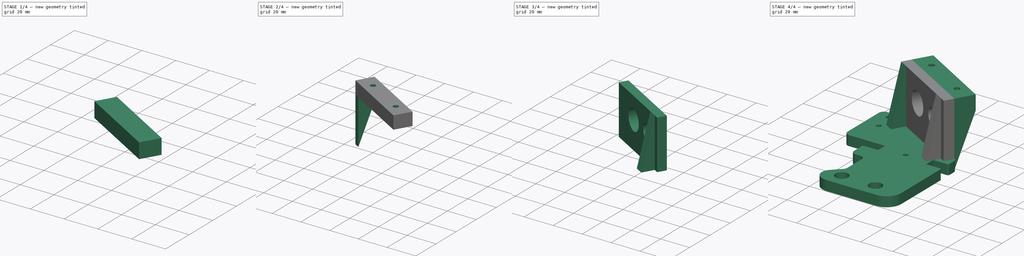
[diagram: build sequence overview — one tinted view per stage of 4, left to right]
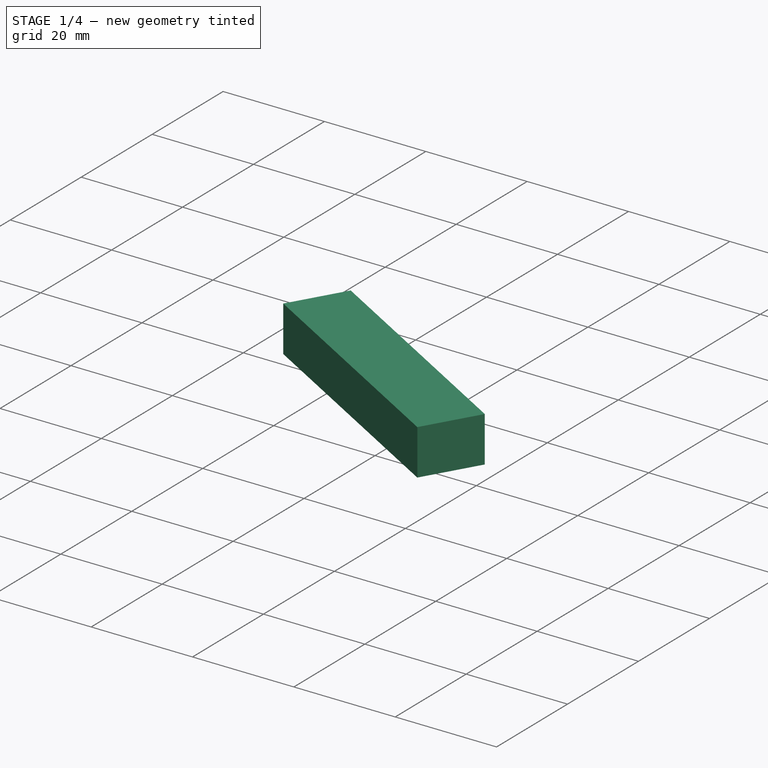
[diagram: stage 1 of 4 — iso view after this stage's code; geometry added in this stage tinted green]
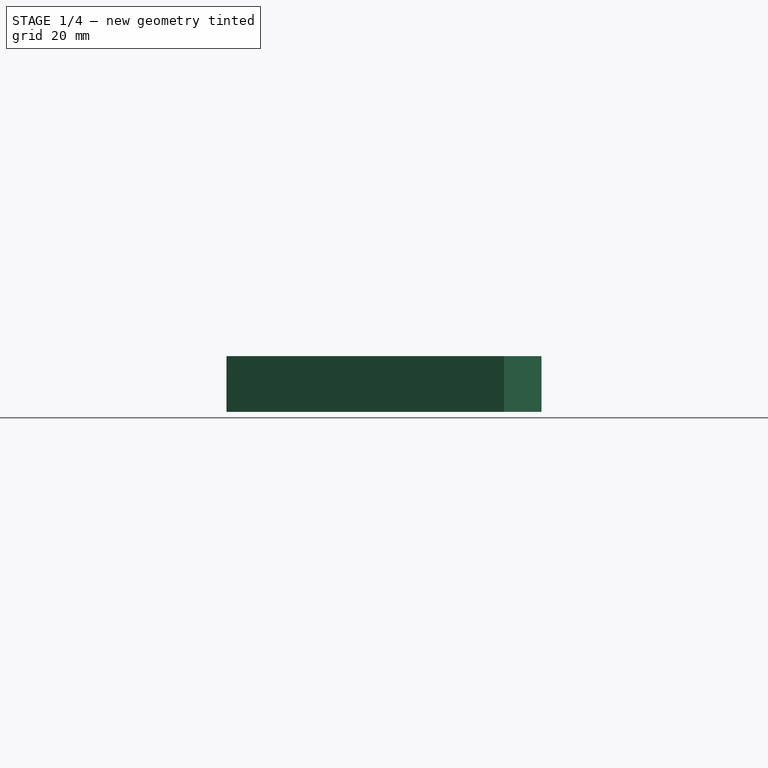
[diagram: stage 1 of 4 — front view after this stage's code; geometry added in this stage tinted green]
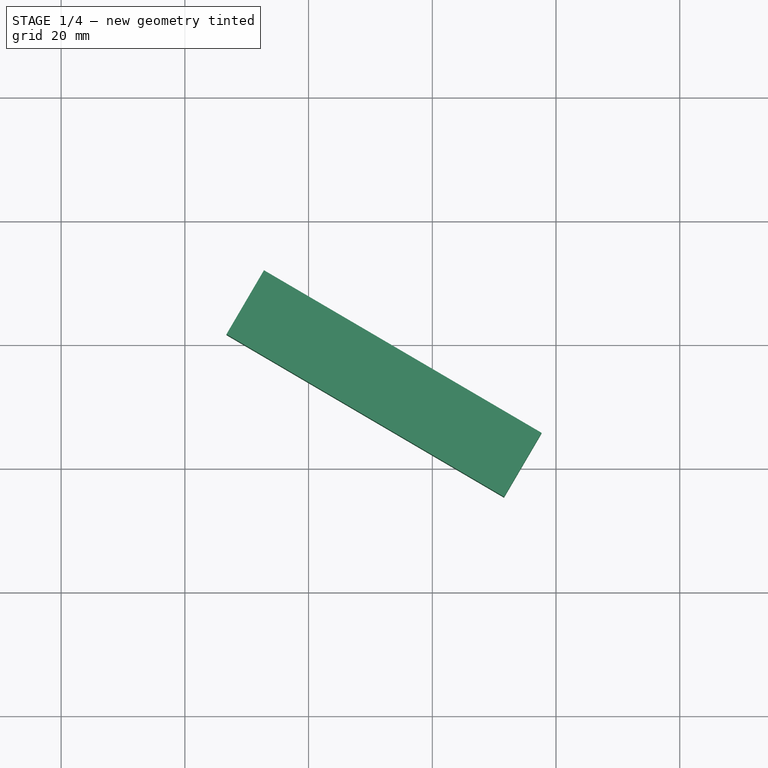
[diagram: stage 1 of 4 — top view after this stage's code; geometry added in this stage tinted green]
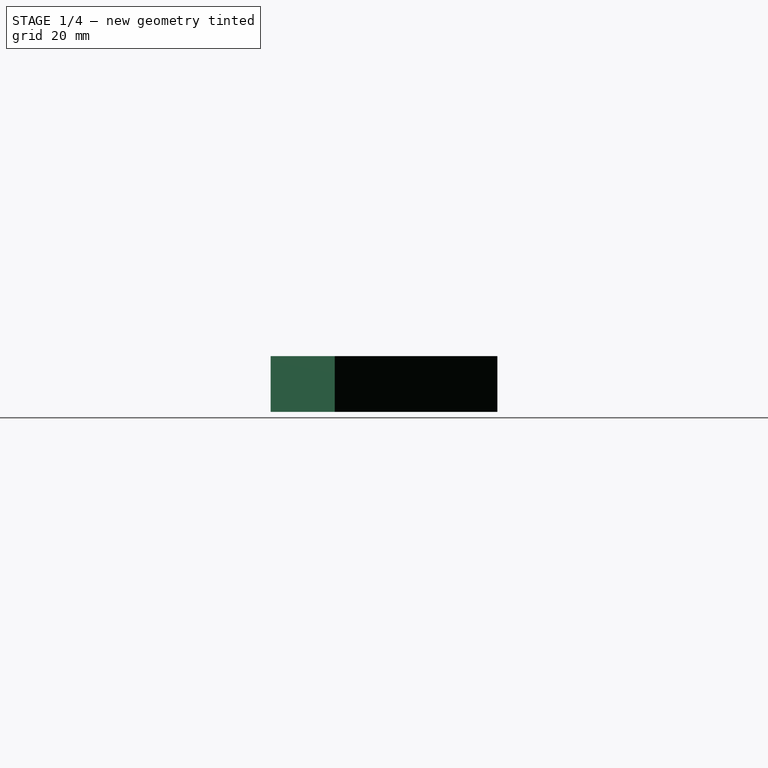
[diagram: stage 1 of 4 — right view after this stage's code; geometry added in this stage tinted green]
FCSTD DOCUMENT  (FreeCAD 0.18R16155 (Git))
Label: pro_w_z_top_2
License: All rights reserved
LicenseURL: http://en.wikipedia.org/wiki/All_rights_reserved
objects: Sketcher::SketchObject×10, Part::Extrusion×6, Part::Feature×2, PartDesign::Body×2, PartDesign::Hole×1, PartDesign::Pocket×1, Part::MultiFuse×1
note: 25 computed .brp shape members not serialized (recipe doc carries the construction recipe); baked Part::Feature solids carry a one-line shape summary decoded from their .brp

FEATURE [Part::Feature] Ztop_oficial_2001
  Placement = pos=(-47,12,0) rot=(0,0,1;0rad)
  shape: bbox 65 x 85.1 x 6.2 mm, 1134 faces, 0 solids (baked)
FEATURE [Sketcher::SketchObject] Sketch
  ExternalGeometry = -> [Ztop_oficial_2001]
  MapMode = 5
  Placement = pos=(-47,12,6.2) rot=(0,0,1;0rad)
  Support = -> [Ztop_oficial_2001]
  sketch-geometry (4):
    g0: LineSegment StartX=33.724 StartY=29.653 StartZ=0 EndX=78.5921 EndY=3.36896 EndZ=0
    g1: LineSegment StartX=33.724 StartY=29.653 StartZ=0 EndX=30.6912 EndY=24.4759 EndZ=0
    g2: LineSegment StartX=30.6912 StartY=24.4759 StartZ=0 EndX=75.5594 EndY=-1.80813 EndZ=0
    g3: LineSegment StartX=78.5921 StartY=3.36896 StartZ=0 EndX=75.5594 EndY=-1.80813 EndZ=0
  constraints (11):
    c: Parallel(g0,g-3)
    c: Coincident(g0,g-3)
    c: Coincident(g1,g0)
    c: Perpendicular(g0,g1)
    c: Distance(g0) = 52
    c: Distance(g1) = 6
    c: Coincident(g2,g1)
    c: Coincident(g2,g3)
    c: Coincident(g3,g0)
    c: Parallel(g2,g0)
    c: Parallel(g3,g1)
FEATURE [Part::Extrusion] Extrude  label="Main"
  Base = -> Sketch
  Dir = (0,0,1)
  DirMode = 2
  FaceMakerClass = Part::FaceMakerBullseye
  LengthFwd = 34
  LengthRev = 0
  Solid = true
  Symmetric = false
FEATURE [Sketcher::SketchObject] Sketch001
  ExternalGeometry = -> [Extrude]
  MapMode = 5
  Placement = pos=(14.7745,25.2208,0) rot=(0.188428,0.69444,0.69444;2.7691rad)
  Support = -> [Extrude]
  sketch-geometry (4):
    g0: LineSegment StartX=-19.4908 StartY=31.2 StartZ=0 EndX=32.5092 EndY=31.2 EndZ=0
    g1: LineSegment StartX=-19.4908 StartY=40.2 StartZ=0 EndX=32.5092 EndY=40.2 EndZ=0
    g2: LineSegment StartX=32.5092 StartY=40.2 StartZ=0 EndX=32.5092 EndY=31.2 EndZ=0
    g3: LineSegment StartX=-19.4908 StartY=40.2 StartZ=0 EndX=-19.4908 EndY=31.2 EndZ=0
  constraints (11):
    c: Distance(g-3) = 52
    c: Coincident(g1,g-4)
    c: Coincident(g2,g1)
    c: Coincident(g1,g-5)
    c: Coincident(g3,g1)
    c: Coincident(g3,g0)
    c: Coincident(g0,g2)
    c: Parallel(g0,g1)
    c: Parallel(g2,g-4)
    c: Parallel(g3,g-5)
    c: Distance(g3) = 9
FEATURE [Part::Extrusion] Extrude001  label="Top"
  Base = -> Sketch001
  Dir = (0.505462,0.862849,2e-16)
  DirMode = 2
  FaceMakerClass = Part::FaceMakerBullseye
  LengthFwd = 12
  LengthRev = 0
  Solid = true
  Symmetric = false
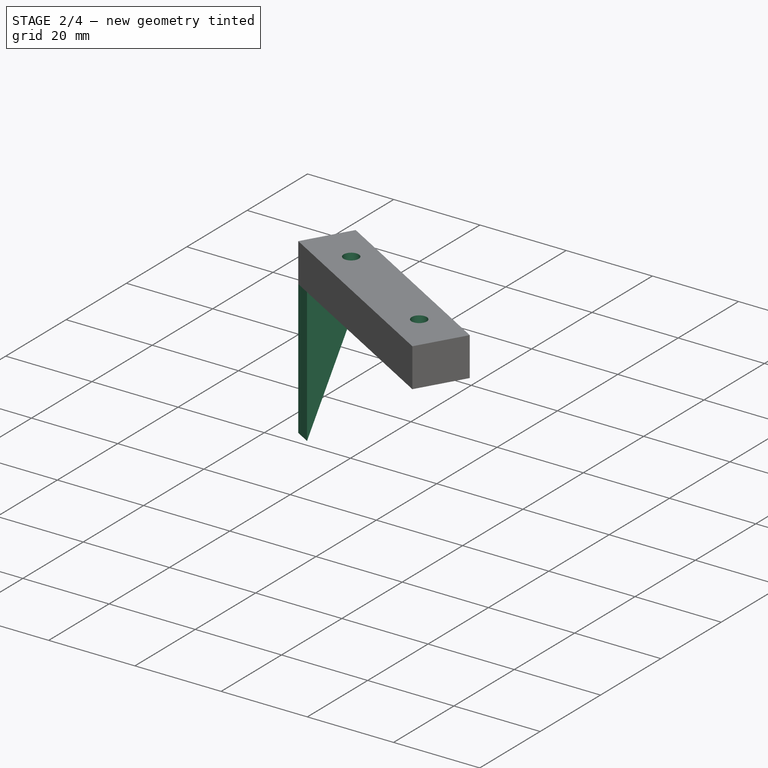
[diagram: stage 2 of 4 — iso view after this stage's code; geometry added in this stage tinted green]
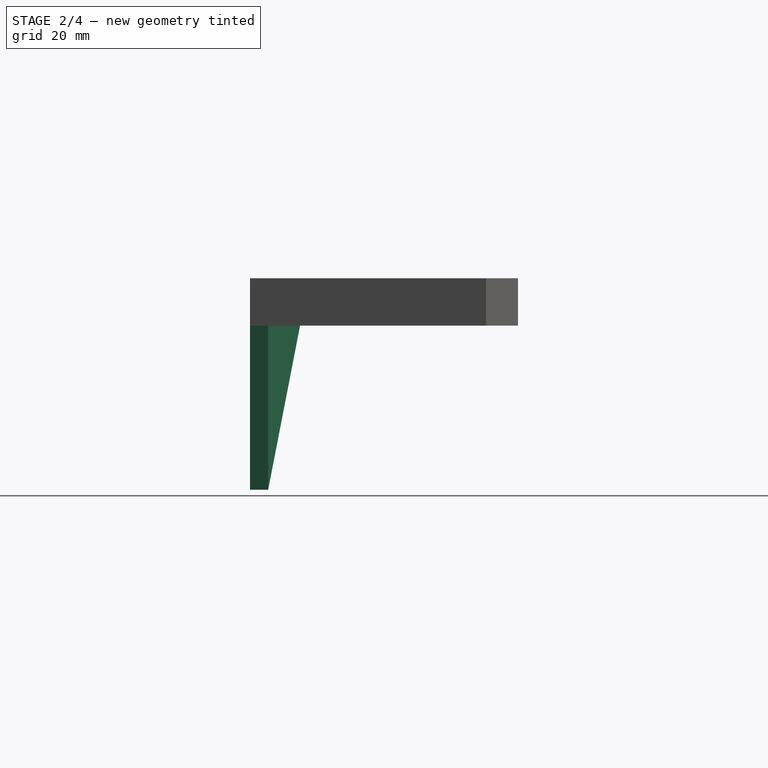
[diagram: stage 2 of 4 — front view after this stage's code; geometry added in this stage tinted green]
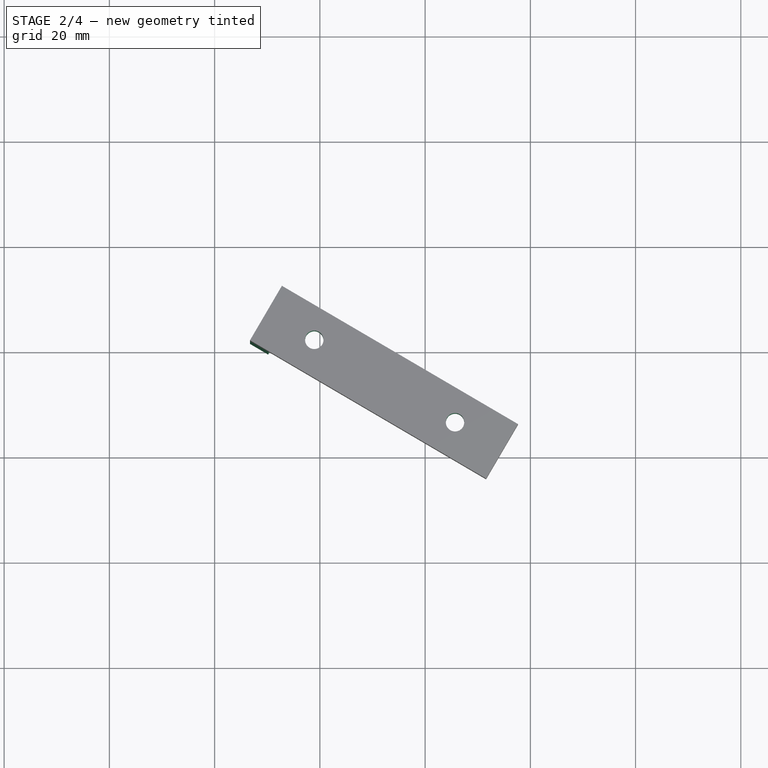
[diagram: stage 2 of 4 — top view after this stage's code; geometry added in this stage tinted green]
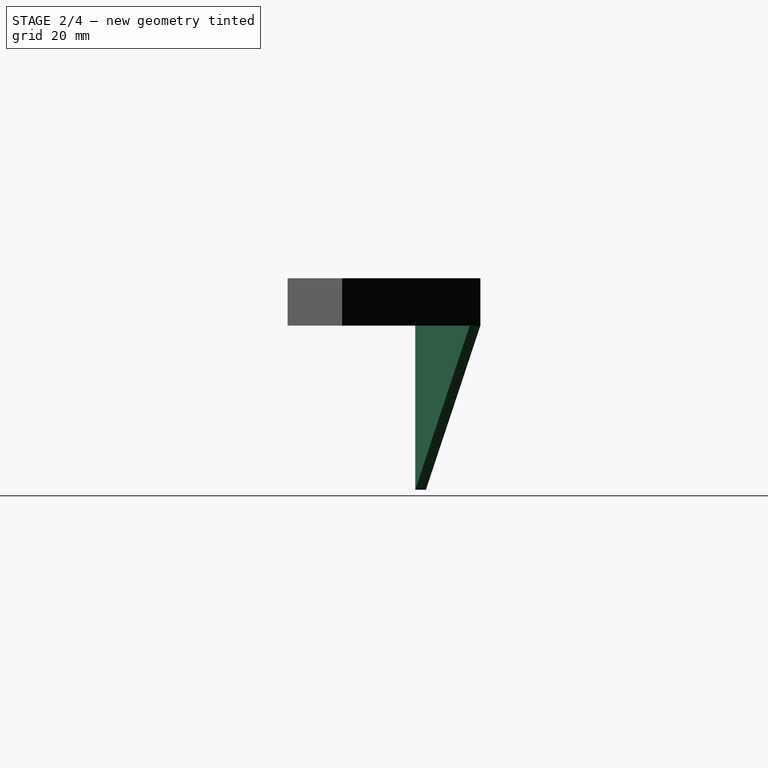
[diagram: stage 2 of 4 — right view after this stage's code; geometry added in this stage tinted green]
FEATURE [Sketcher::SketchObject] Sketch002
  ExternalGeometry = -> [Extrude,Extrude001,Ztop_oficial_2001]
  MapMode = 5
  Placement = pos=(-28.0505,16.4322,0) rot=(-0.375601,0.655333,0.655333;3.86019rad)
  Support = -> [Extrude]
  sketch-geometry (3):
    g0: LineSegment StartX=-29.2297 StartY=31.2 StartZ=0 EndX=-29.2297 EndY=0 EndZ=0
    g1: LineSegment StartX=-41.2297 StartY=31.2 StartZ=0 EndX=-29.2297 EndY=31.2 EndZ=0
    g2: LineSegment StartX=-41.2297 StartY=31.2 StartZ=0 EndX=-29.2297 EndY=0 EndZ=0
  constraints (6):
    c: Coincident(g2,g1)
    c: Coincident(g1,g-4)
    c: Coincident(g1,g0)
    c: Coincident(g0,g-4)
    c: Coincident(g0,g2)
    c: Coincident(g0,g-5)
FEATURE [Part::Extrusion] Extrude002
  Base = -> Sketch002
  Dir = (-0.862849,0.505462,0)
  DirMode = 2
  FaceMakerClass = Part::FaceMakerBullseye
  LengthFwd = -4
  LengthRev = 0
  Solid = true
  Symmetric = false
FEATURE [Sketcher::SketchObject] Sketch004
  ExternalGeometry = -> [Extrude001]
  MapMode = 5
  Placement = pos=(-8e-15,-2.8e-15,40.2) rot=(0,0,1;0rad)
  Support = -> [Extrude001]
  sketch-geometry (4):
    g0: Circle CenterX=-1.05695 CenterY=41.7385 CenterZ=0 NormalX=0 NormalY=0 NormalZ=1 AngleXU=0 Radius=1.5
    g1: Circle CenterX=25.6914 CenterY=26.0691 CenterZ=0 NormalX=0 NormalY=0 NormalZ=1 AngleXU=0 Radius=1.5
    g2: LineSegment [constr] StartX=25.6914 StartY=26.0691 StartZ=0 EndX=34.7513 EndY=20.7618 EndZ=0
    g3: LineSegment [constr] StartX=-10.1169 StartY=47.0458 StartZ=0 EndX=-1.05695 EndY=41.7385 EndZ=0
  constraints (12):
    c: Diameter(g0) = 3
    c: Diameter(g1) = 3
    c: Distance(g0,g1) = 31
    c: Distance(g0,g-3) = 5.75
    c: Distance(g1,g-3) = 5.75
    c: Coincident(g2,g1)
    c: PointOnObject(g2,g-4)
    c: Perpendicular(g-4,g2)
    c: Coincident(g3,g0)
    c: PointOnObject(g3,g-5)
    c: Perpendicular(g-5,g3)
    c: Equal(g3,g2)
FEATURE [PartDesign::Hole] Hole
  Depth = 25
  DepthType = 1
  Diameter = 3.5
  DrillPoint = 1
  DrillPointAngle = 118
  HoleCutCountersinkAngle = 90
  HoleCutDepth = 0
  HoleCutDiameter = 0
  HoleCutType = 0
  ModelActualThread = false
  Profile = -> Sketch004
  Tapered = false
  TaperedAngle = 90
  ThreadAngle = 0
  ThreadClass = 0
  ThreadCutOffInner = 0
  ThreadCutOffOuter = 0
  ThreadDirection = 0
  ThreadFit = 0
  ThreadPitch = 0
  ThreadSize = 0
  ThreadType = 0
  Threaded = false
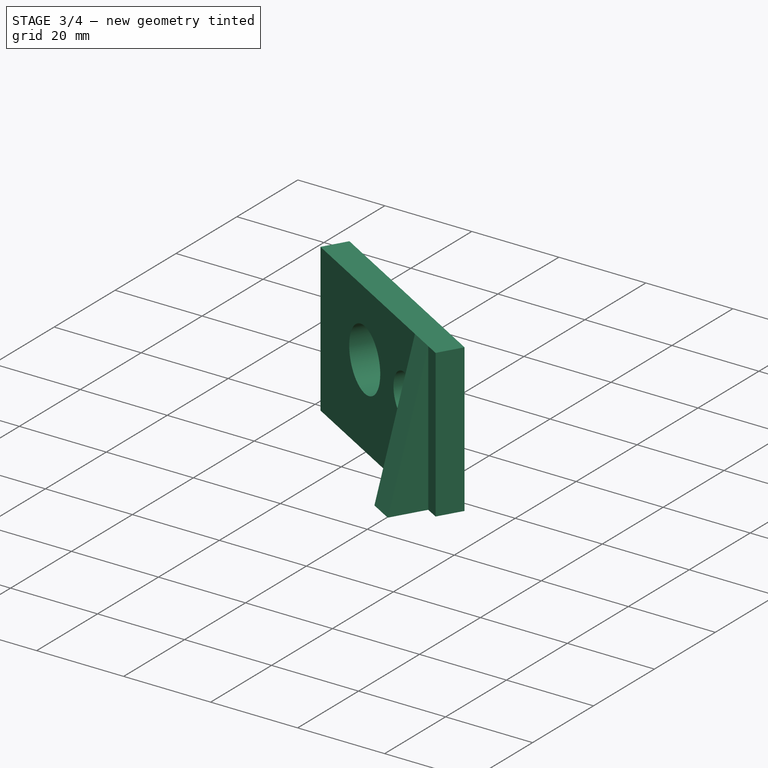
[diagram: stage 3 of 4 — iso view after this stage's code; geometry added in this stage tinted green]
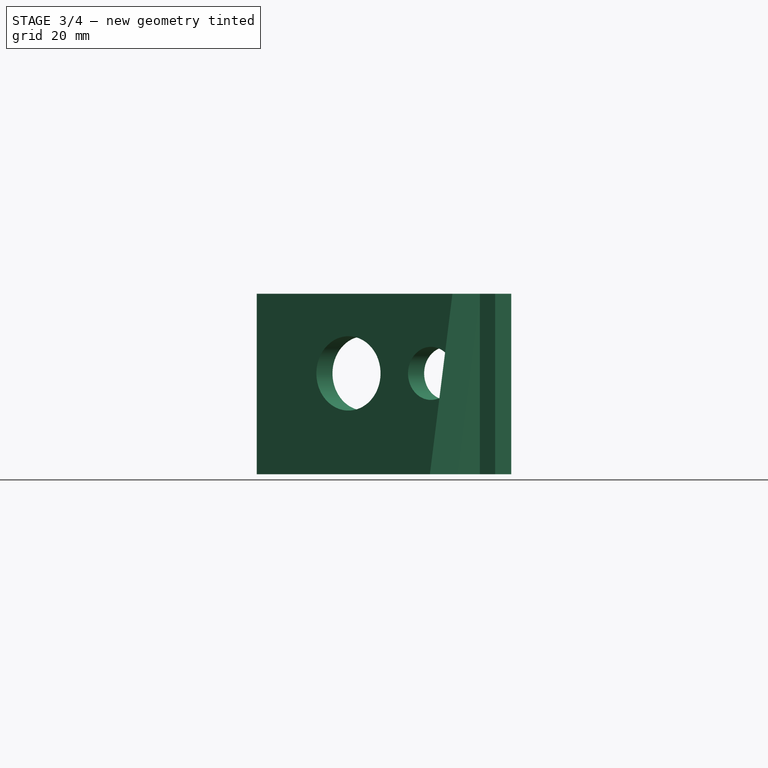
[diagram: stage 3 of 4 — front view after this stage's code; geometry added in this stage tinted green]
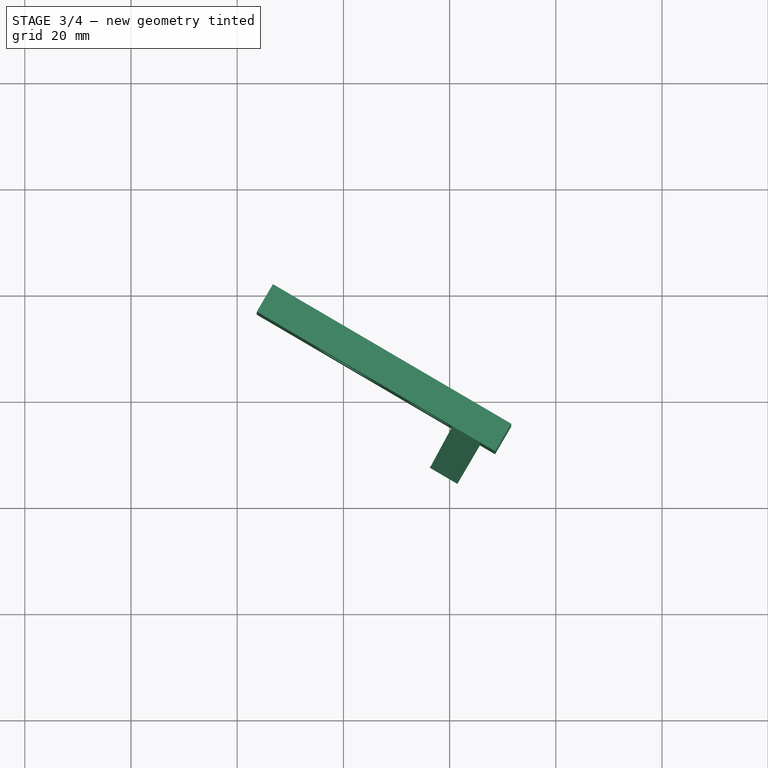
[diagram: stage 3 of 4 — top view after this stage's code; geometry added in this stage tinted green]
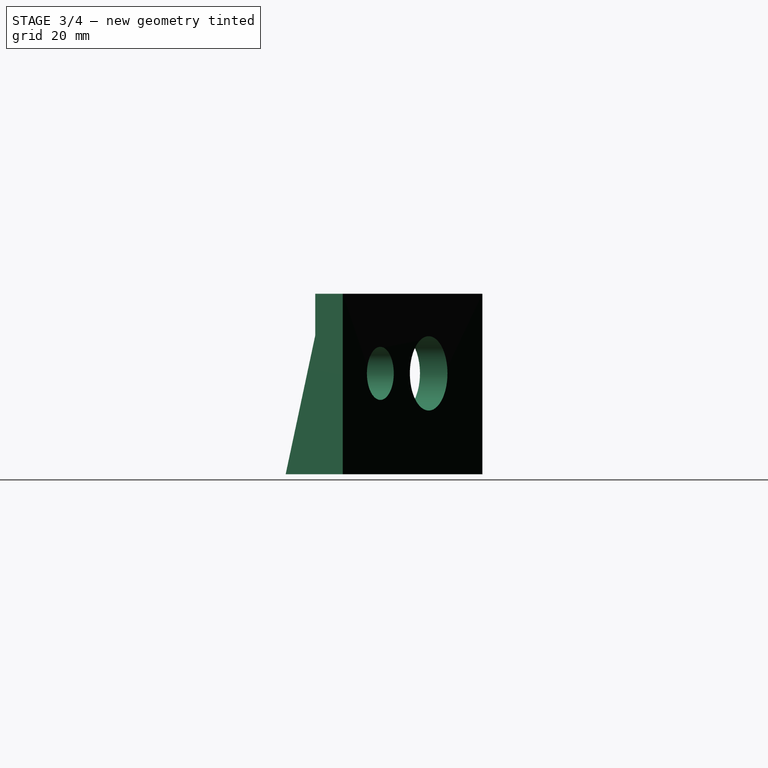
[diagram: stage 3 of 4 — right view after this stage's code; geometry added in this stage tinted green]
FEATURE [Sketcher::SketchObject] Sketch003
  ExternalGeometry = -> [Extrude,Extrude001,Ztop_oficial_2001,Extrude002]
  MapMode = 5
  Placement = pos=(16.8176,-9.85186,0) rot=(0.776855,0.445251,0.445251;1.82066rad)
  Support = -> [Extrude]
  sketch-geometry (3):
    g0: LineSegment StartX=29.2297 StartY=31.2 StartZ=0 EndX=29.2297 EndY=-1.90735e-07 EndZ=0
    g1: LineSegment StartX=29.2297 StartY=31.2 StartZ=0 EndX=41.2297 EndY=31.2 EndZ=0
    g2: LineSegment StartX=41.2297 StartY=31.2 StartZ=0 EndX=29.2297 EndY=-1.90735e-07 EndZ=0
  constraints (8):
    c: Coincident(g1,g0)
    c: Coincident(g0,g-4)
    c: Coincident(g1,g2)
    c: Coincident(g1,g-4)
    c: Coincident(g0,g2)
    c: Distance(g-6) = 6.2
    c: Parallel(g0,g-3)
    c: Distance(g0) = 31.2
FEATURE [Part::Extrusion] Extrude003
  Base = -> Sketch003
  Dir = (0.862849,-0.505462,0)
  DirMode = 2
  FaceMakerClass = Part::FaceMakerBullseye
  LengthFwd = -4
  LengthRev = 0
  Solid = true
  Symmetric = false
FEATURE [Sketcher::SketchObject] Sketch006  label="Helper 1"
  ExternalGeometry = -> [Ztop_oficial_2001,Extrude]
  MapMode = 5
  Placement = pos=(-47,12,6.2) rot=(0,0,1;0rad)
  Support = -> [Ztop_oficial_2001]
  sketch-geometry (1):
    g0: LineSegment StartX=68.4595 StartY=-7.3842 StartZ=0 EndX=72.7054 EndY=-0.136266 EndZ=0
  constraints (4):
    c: PointOnObject(g0,g-5)
    c: PointOnObject(g-4,g0)
    c: Perpendicular(g-5,g0)
    c: Distance(g0) = 8.4
FEATURE [Sketcher::SketchObject] Sketch007  label="Helper 2"
  ExternalGeometry = -> [Sketch006,Extrude]
  MapMode = 5
  Placement = pos=(11.7417,20.0437,0) rot=(0.933622,-0.253327,-0.253327;1.63943rad)
  Support = -> [Extrude]
  sketch-geometry (1):
    g0: LineSegment StartX=16.1832 StartY=40.2 StartZ=0 EndX=16.1832 EndY=6.2 EndZ=0
  constraints (3):
    c: Coincident(g0,g-3)
    c: PointOnObject(g0,g-4)
    c: Parallel(g0,g-5)
FEATURE [Sketcher::SketchObject] Sketch008
  ExternalGeometry = -> [Sketch006,Sketch007]
  MapMode = 13
  Placement = pos=(24.2901,9.44776,17.5333) rot=(0.776855,0.445251,0.445251;1.82066rad)
  Support = -> [Sketch006,Sketch007]
  sketch-geometry (3):
    g0: LineSegment StartX=-5.6 StartY=-11.3333 StartZ=0 EndX=2.8 EndY=-11.3333 EndZ=0
    g1: LineSegment StartX=2.8 StartY=-11.3333 StartZ=0 EndX=2.8 EndY=22.6667 EndZ=0
    g2: LineSegment StartX=-5.6 StartY=-11.3333 StartZ=0 EndX=2.8 EndY=22.6667 EndZ=0
  constraints (7):
    c: Coincident(g1,g2)
    c: Coincident(g2,g0)
    c: Coincident(g0,g1)
    c: Coincident(g0,g-3)
    c: Parallel(g0,g-3)
    c: Distance(g0) = 8.4
    c: Coincident(g1,g-4)
FEATURE [Part::Extrusion] Extrude005
  Base = -> Sketch008
  Dir = (0.862849,-0.505462,0)
  DirMode = 2
  FaceMakerClass = Part::FaceMakerBullseye
  LengthFwd = -6
  LengthRev = 0
  Solid = true
  Symmetric = false
FEATURE [Sketcher::SketchObject] Sketch009
  ExternalGeometry = -> [Hole,Extrude002,Extrude003,Ztop_oficial_2001]
  MapMode = 5
  Placement = pos=(14.7745,25.2208,0) rot=(0.188428,0.69444,0.69444;2.7691rad)
  Support = -> [Extrude]
  sketch-geometry (3):
    g0: Circle CenterX=12.5092 CenterY=25.2 CenterZ=0 NormalX=0 NormalY=0 NormalZ=1 AngleXU=0 Radius=7
    g1: Circle CenterX=-5.4908 CenterY=25.2 CenterZ=0 NormalX=0 NormalY=0 NormalZ=1 AngleXU=0 Radius=5
    g2: LineSegment [constr] StartX=-5.4908 StartY=25.2 StartZ=0 EndX=12.5092 EndY=25.2 EndZ=0
  constraints (9):
    c: Diameter(g1) = 10
    c: Diameter(g0) = 14
    c: Distance(g1,g0) = 18
    c: Parallel(g2,g-3)
    c: Coincident(g2,g0)
    c: Coincident(g2,g1)
    c: Distance(g0,g-3) = 6
    c: Distance(g1,g-5) = 10
    c: Distance(g-4) = 31.2
FEATURE [PartDesign::Pocket] Pocket
  Length = 12
  Length2 = 100
  Profile = -> Sketch009
  Type = 0
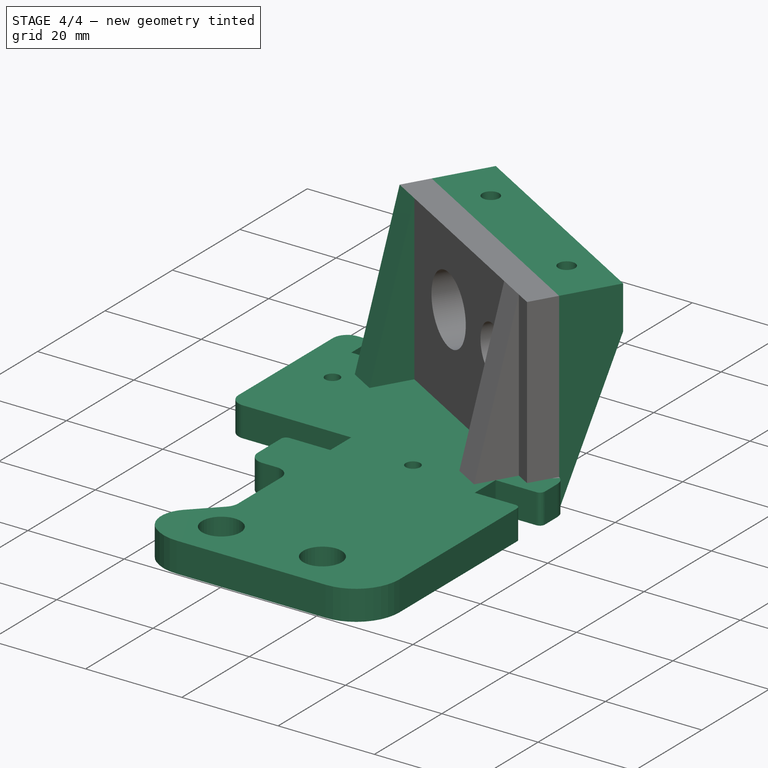
[diagram: stage 4 of 4 — iso view after this stage's code; geometry added in this stage tinted green]
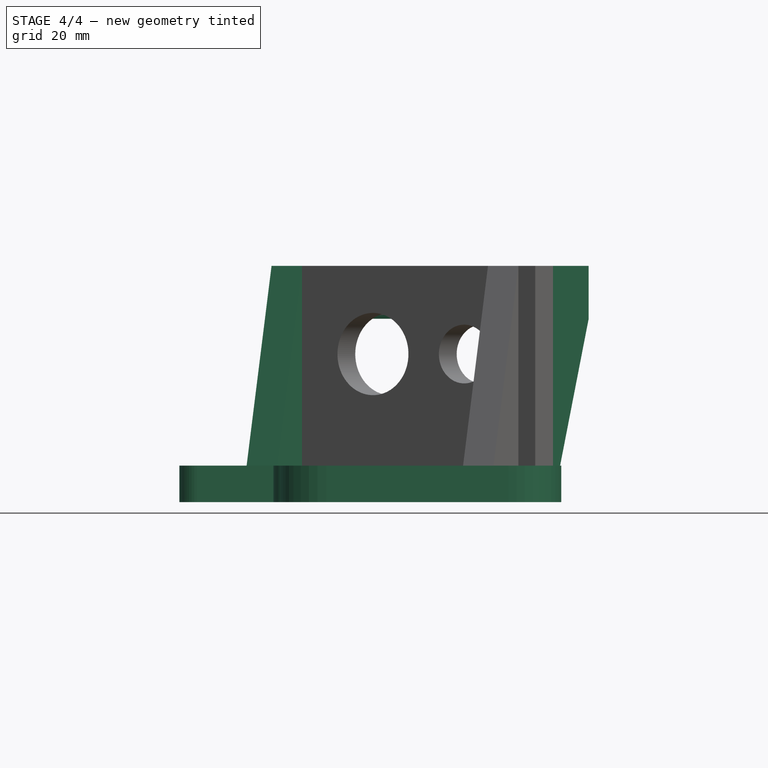
[diagram: stage 4 of 4 — front view after this stage's code; geometry added in this stage tinted green]
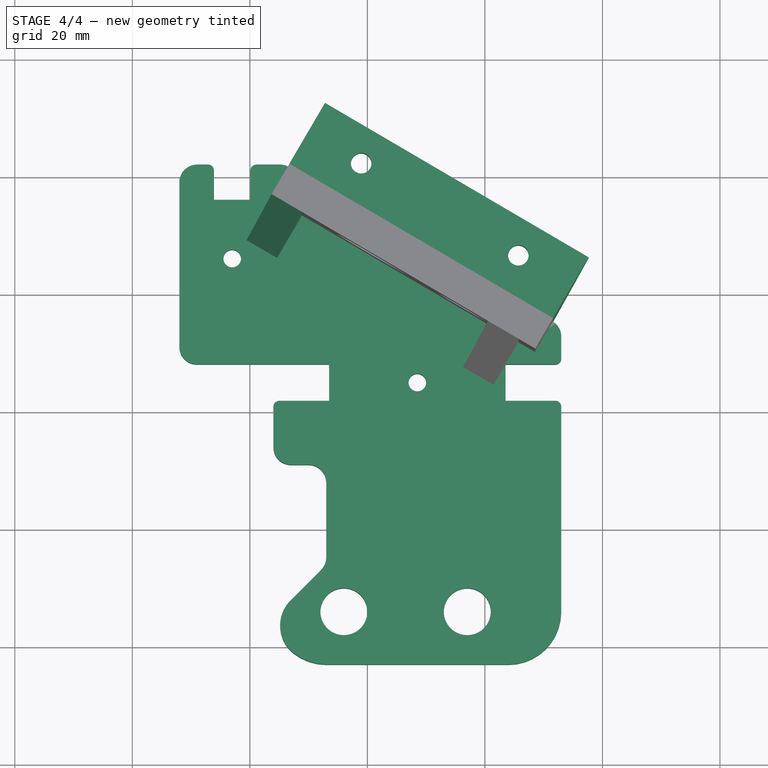
[diagram: stage 4 of 4 — top view after this stage's code; geometry added in this stage tinted green]
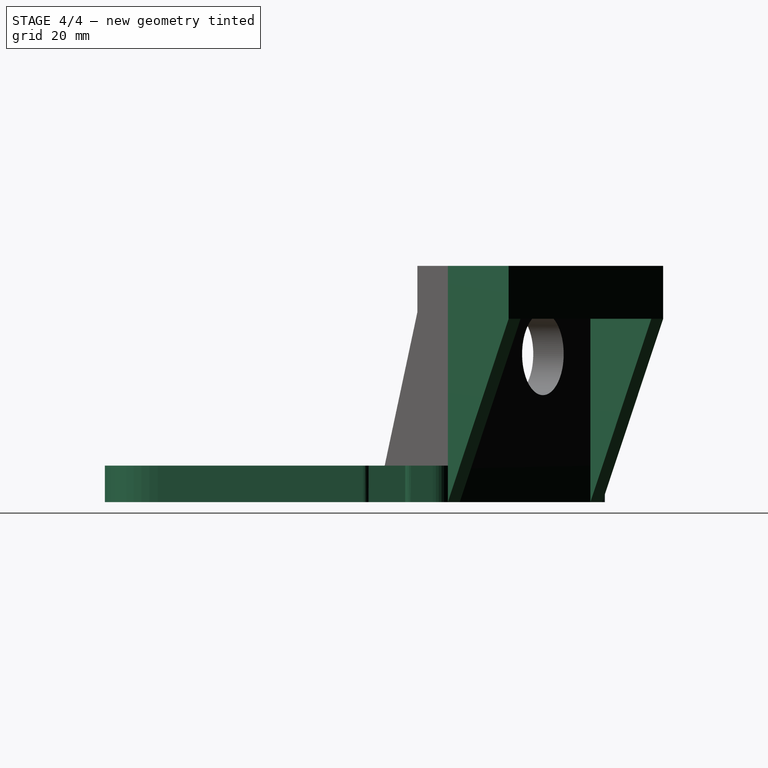
[diagram: stage 4 of 4 — right view after this stage's code; geometry added in this stage tinted green]
FEATURE [Sketcher::SketchObject] Sketch005
  ExternalGeometry = -> [Extrude,Extrude002]
  MapMode = 5
  Placement = pos=(-28.0505,16.4322,0) rot=(-0.375601,0.655333,0.655333;3.86019rad)
  Support = -> [Extrude]
  sketch-geometry (3):
    g0: LineSegment StartX=-23.2297 StartY=40.2 StartZ=0 EndX=-23.2297 EndY=6.2 EndZ=0
    g1: LineSegment StartX=-23.2297 StartY=6.2 StartZ=0 EndX=-14.8297 EndY=6.2 EndZ=0
    g2: LineSegment StartX=-23.2297 StartY=40.2 StartZ=0 EndX=-14.8297 EndY=6.2 EndZ=0
  constraints (7):
    c: Coincident(g0,g2)
    c: Coincident(g0,g-3)
    c: Coincident(g0,g1)
    c: Coincident(g0,g-3)
    c: Coincident(g1,g2)
    c: Perpendicular(g0,g1)
    c: Distance(g1) = 8.4
FEATURE [Part::Extrusion] Extrude004
  Base = -> Sketch005
  Dir = (-0.862849,0.505462,0)
  DirMode = 2
  FaceMakerClass = Part::FaceMakerBullseye
  LengthFwd = -6
  LengthRev = 0
  Solid = true
  Symmetric = false
FEATURE [PartDesign::Body] Body001
  Group = -> [Sketch009,Pocket]
  Origin = -> Origin001
  Tip = -> Pocket
FEATURE [PartDesign::Body] Body
  Group = -> [Sketch004,Hole]
  Origin = -> Origin
  Tip = -> Hole
FEATURE [Part::Feature] Ztop_oficial_2001_solid  label="Ztop_oficial_2001 (Solid)"
  shape: bbox 65 x 85.1 x 6.2 mm, 1134 faces (baked)
FEATURE [Part::MultiFuse] Fusion
  Shapes = -> [Extrude002,Extrude003,Extrude004,Ztop_oficial_2001_solid,Body,Body001,Extrude005]
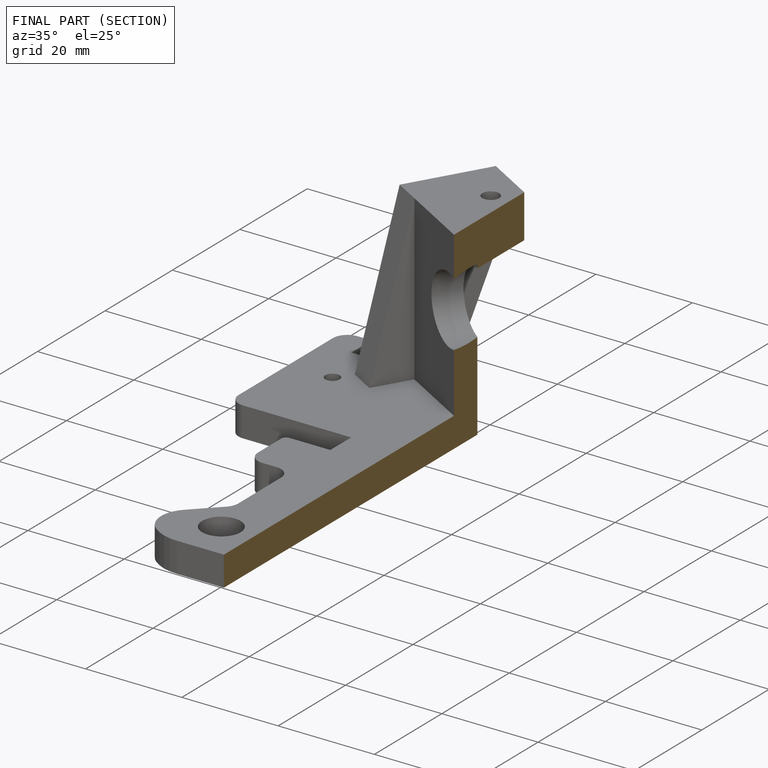
[diagram: finished part — half-section view (interior)]
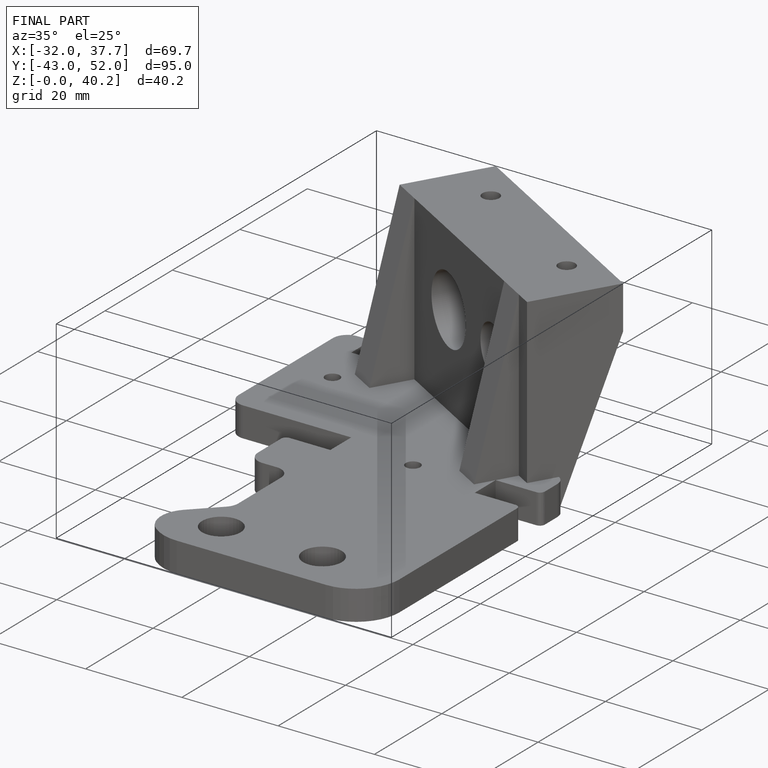
[diagram: finished part — iso view with bounding-box wireframe]
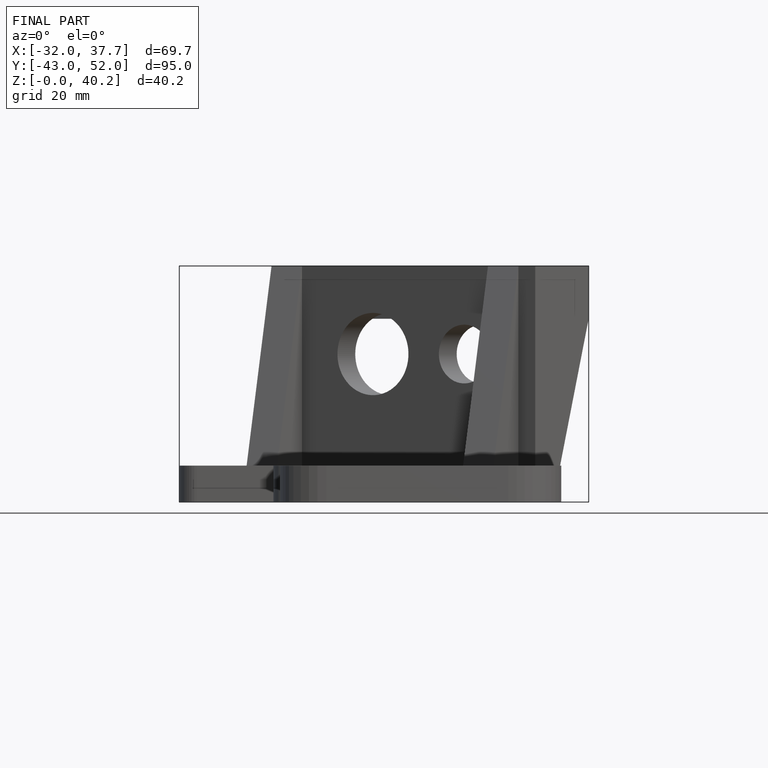
[diagram: finished part — front view with bounding-box wireframe]
